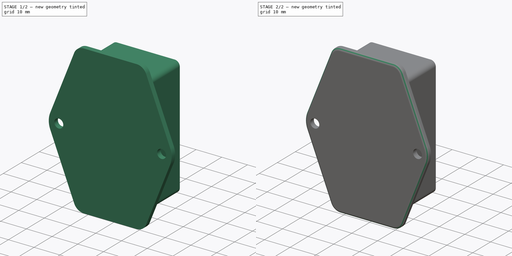
[diagram: build sequence overview — one tinted view per stage of 2, left to right]
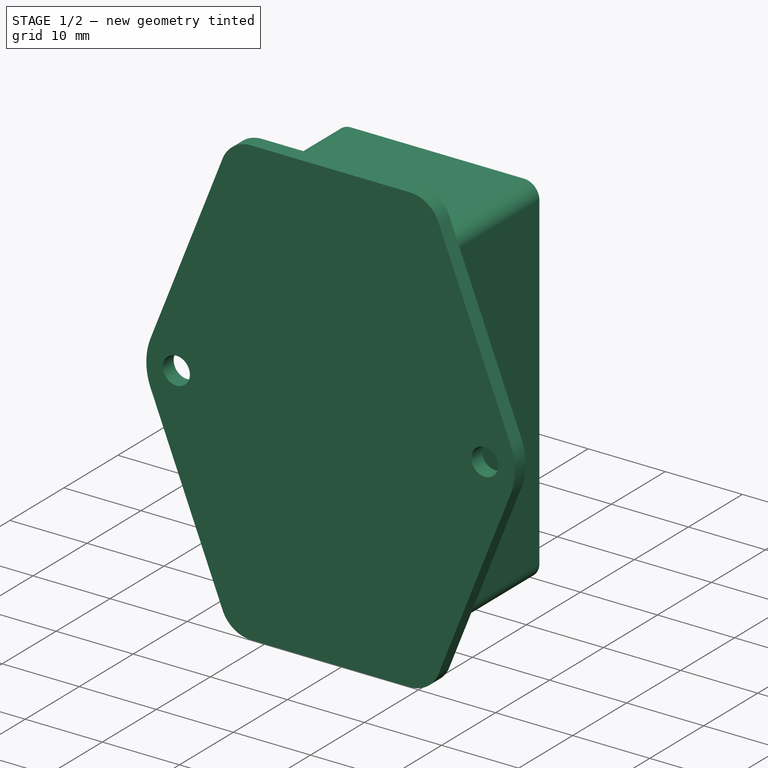
[diagram: stage 1 of 2 — iso view after this stage's code; geometry added in this stage tinted green]
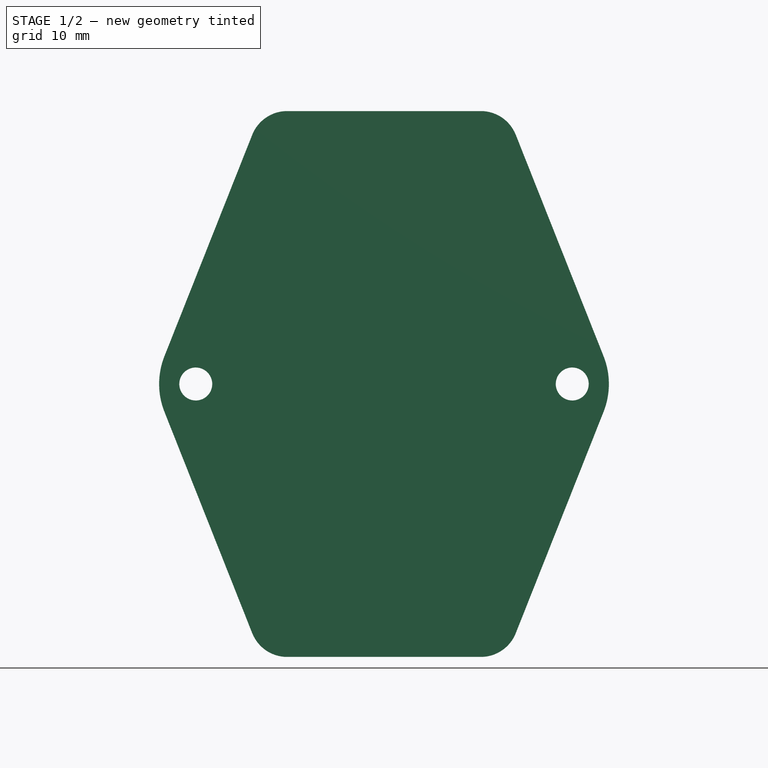
[diagram: stage 1 of 2 — front view after this stage's code; geometry added in this stage tinted green]
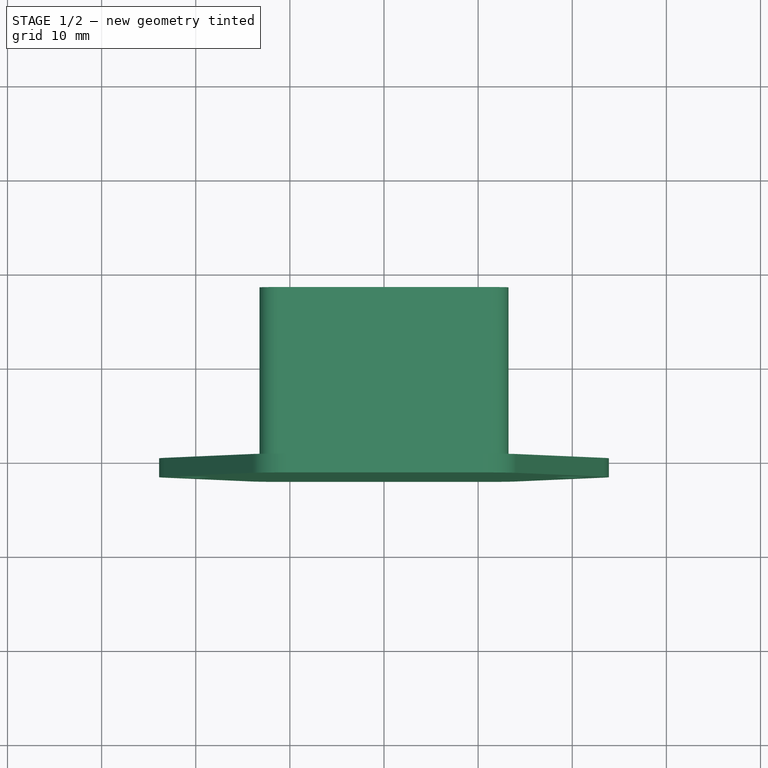
[diagram: stage 1 of 2 — top view after this stage's code; geometry added in this stage tinted green]
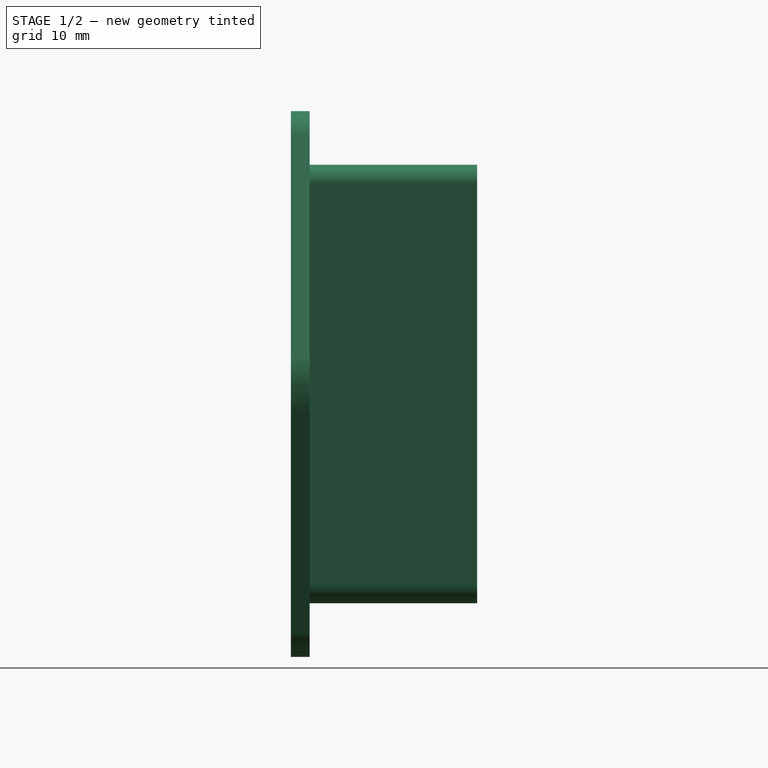
[diagram: stage 1 of 2 — right view after this stage's code; geometry added in this stage tinted green]
FCSTD DOCUMENT  (FreeCAD 1.0R39109 (Git))
Label: power-connector
License: All rights reserved
LicenseURL: http://en.wikipedia.org/wiki/All_rights_reserved
objects: Sketcher::SketchObject×2, PartDesign::Pad×2, PartDesign::Fillet×1, PartDesign::Body×1
note: 14 computed .brp shape members not serialized (recipe doc carries the construction recipe); baked Part::Feature solids carry a one-line shape summary decoded from their .brp

FEATURE [Sketcher::SketchObject] Sketch062
  ArcFitTolerance = 1e-06
  AttachmentSupport = -> [XZ_Plane023]
  FullyConstrained = true
  MakeInternals = false
  MapMode = 5
  Placement = pos=(0,0,0) rot=(1,0,0;1.5708rad)
  sketch-geometry (12):
    g0: LineSegment StartX=-13.225 StartY=21.3 StartZ=0 EndX=-13.225 EndY=-21.3 EndZ=0
    g1: LineSegment StartX=-11.225 StartY=-23.3 StartZ=0 EndX=11.225 EndY=-23.3 EndZ=0
    g2: LineSegment StartX=13.225 StartY=-21.3 StartZ=0 EndX=13.225 EndY=21.3 EndZ=0
    g3: LineSegment StartX=11.225 StartY=23.3 StartZ=0 EndX=-11.225 EndY=23.3 EndZ=0
    g4: ArcOfCircle CenterX=11.225 CenterY=21.3 CenterZ=0 NormalX=0 NormalY=0 NormalZ=1 AngleXU=0 Radius=2 StartAngle=1.41e-14 EndAngle=1.5708
    g5: GeomPoint [constr] X=13.225 Y=23.3 Z=0
    g6: ArcOfCircle CenterX=-11.225 CenterY=21.3 CenterZ=0 NormalX=0 NormalY=0 NormalZ=1 AngleXU=0 Radius=2 StartAngle=1.5708 EndAngle=3.14159
    g7: GeomPoint [constr] X=-13.225 Y=23.3 Z=0
    g8: ArcOfCircle CenterX=-11.225 CenterY=-21.3 CenterZ=0 NormalX=0 NormalY=0 NormalZ=1 AngleXU=0 Radius=2 StartAngle=3.14159 EndAngle=4.71239
    g9: GeomPoint [constr] X=-13.225 Y=-23.3 Z=0
    g10: ArcOfCircle CenterX=11.225 CenterY=-21.3 CenterZ=0 NormalX=0 NormalY=0 NormalZ=1 AngleXU=0 Radius=2 StartAngle=4.71239 EndAngle=6.28319
    g11: GeomPoint [constr] X=13.225 Y=-23.3 Z=0
  constraints (27):
    c: Vertical(g0)
    c: Vertical(g2)
    c: Horizontal(g1)
    c: Horizontal(g3)
    c: Symmetric(g11,g7,g-1)
    c: DistanceX(g7,g5) = 26.45
    c: DistanceY(g11,g5) = 46.6
    c: PointOnObject(g5,g2)
    c: PointOnObject(g5,g3)
    c: Tangent(g2,g4) = -1.5708
    c: Tangent(g3,g4) = -1.5708
    c: PointOnObject(g7,g0)
    c: PointOnObject(g7,g3)
    c: Tangent(g0,g6) = -1.5708
    c: Tangent(g3,g6) = -1.5708
    c: PointOnObject(g9,g0)
    c: PointOnObject(g9,g1)
    c: Tangent(g0,g8) = -1.5708
    c: Tangent(g1,g8) = -1.5708
    c: PointOnObject(g11,g1)
    c: PointOnObject(g11,g2)
    c: Tangent(g1,g10) = -1.5708
    c: Tangent(g2,g10) = -1.5708
    c: Equal(g10,g8)
    c: Equal(g8,g6)
    c: Equal(g6,g4)
    c: Radius(g4) = 2
FEATURE [PartDesign::Pad] Pad027
  Direction = (0,-1,2e-16)
  Length = 17.8
  Length2 = 10
  Placement = pos=(0,0,0) rot=(1,0,0;1.5708rad)
  Profile = -> Sketch062
  ReferenceAxis = -> Sketch062 [N_Axis]
  Reversed = true
  Suppressed = false
  Type = 0
FEATURE [Sketcher::SketchObject] Sketch063
  ArcFitTolerance = 1e-06
  AttachmentSupport = -> [XZ_Plane023]
  FullyConstrained = true
  MakeInternals = false
  MapMode = 5
  Placement = pos=(0,0,0) rot=(1,0,0;1.5708rad)
  sketch-geometry (20):
    g0: LineSegment StartX=-10.2832 StartY=29 StartZ=0 EndX=10.2832 EndY=29 EndZ=0
    g1: LineSegment StartX=14.0015 StartY=26.4745 StartZ=0 EndX=23.3306 EndY=2.94901 EndZ=0
    g2: LineSegment StartX=23.3306 StartY=-2.94901 StartZ=0 EndX=14.0015 EndY=-26.4745 EndZ=0
    g3: LineSegment StartX=10.2832 StartY=-29 StartZ=0 EndX=-10.2832 EndY=-29 EndZ=0
    g4: LineSegment StartX=-14.0015 StartY=-26.4745 StartZ=0 EndX=-23.3306 EndY=-2.94901 EndZ=0
    g5: LineSegment StartX=-23.3306 StartY=2.94901 StartZ=0 EndX=-14.0015 EndY=26.4745 EndZ=0
    g6: ArcOfCircle CenterX=-15.8939 CenterY=-3.7e-15 CenterZ=0 NormalX=0 NormalY=0 NormalZ=1 AngleXU=0 Radius=8 StartAngle=2.76406 EndAngle=3.51912
    g7: GeomPoint [constr] X=-24.5 Y=0 Z=0
    g8: ArcOfCircle CenterX=-10.2832 CenterY=25 CenterZ=0 NormalX=0 NormalY=0 NormalZ=1 AngleXU=0 Radius=4 StartAngle=1.5708 EndAngle=2.76406
    g9: GeomPoint [constr] X=-13 Y=29 Z=0
    g10: ArcOfCircle CenterX=10.2832 CenterY=25 CenterZ=0 NormalX=0 NormalY=0 NormalZ=1 AngleXU=0 Radius=4 StartAngle=0.37753 EndAngle=1.5708
    g11: GeomPoint [constr] X=13 Y=29 Z=0
    g12: ArcOfCircle CenterX=15.8939 CenterY=-2.2e-15 CenterZ=0 NormalX=0 NormalY=0 NormalZ=1 AngleXU=0 Radius=8 StartAngle=5.90566 EndAngle=6.66072
    g13: GeomPoint [constr] X=24.5 Y=0 Z=0
    g14: ArcOfCircle CenterX=10.2832 CenterY=-25 CenterZ=0 NormalX=0 NormalY=0 NormalZ=1 AngleXU=0 Radius=4 StartAngle=4.71239 EndAngle=5.90566
    g15: GeomPoint [constr] X=13 Y=-29 Z=0
    g16: ArcOfCircle CenterX=-10.2832 CenterY=-25 CenterZ=0 NormalX=0 NormalY=0 NormalZ=1 AngleXU=0 Radius=4 StartAngle=3.51912 EndAngle=4.71239
    g17: GeomPoint [constr] X=-13 Y=-29 Z=0
    g18: Circle CenterX=20 CenterY=0 CenterZ=0 NormalX=0 NormalY=0 NormalZ=1 AngleXU=0 Radius=1.75
    g19: Circle CenterX=-20 CenterY=0 CenterZ=0 NormalX=0 NormalY=0 NormalZ=1 AngleXU=0 Radius=1.75
  constraints (44):
    c: PointOnObject(g13,g-1)
    c: Horizontal(g3)
    c: Symmetric(g9,g11,g-2)
    c: Symmetric(g7,g13,g-2)
    c: Vertical(g11,g15)
    c: Symmetric(g17,g9,g-1)
    c: PointOnObject(g7,g4)
    c: PointOnObject(g7,g5)
    c: Tangent(g4,g6) = 1.5708
    c: Tangent(g5,g6) = 1.5708
    c: PointOnObject(g9,g0)
    c: PointOnObject(g9,g5)
    c: Tangent(g0,g8) = 1.5708
    c: Tangent(g5,g8) = 1.5708
    c: PointOnObject(g11,g0)
    c: PointOnObject(g11,g1)
    c: Tangent(g0,g10) = 1.5708
    c: Tangent(g1,g10) = 1.5708
    c: PointOnObject(g13,g1)
    c: PointOnObject(g13,g2)
    c: Tangent(g1,g12) = 1.5708
    c: Tangent(g2,g12) = 1.5708
    c: PointOnObject(g15,g2)
    c: PointOnObject(g15,g3)
    c: Tangent(g2,g14) = 1.5708
    c: Tangent(g3,g14) = 1.5708
    c: PointOnObject(g17,g3)
    c: PointOnObject(g17,g4)
    c: Tangent(g3,g16) = 1.5708
    c: Tangent(g4,g16) = 1.5708
    c: Equal(g16,g14)
    c: Equal(g14,g10)
    c: Equal(g10,g8)
    c: Radius(g8) = 4
    c: Equal(g6,g12)
    c: Radius(g12) = 8
    c: DistanceY(g15,g11) = 58
    c: DistanceX(g9,g11) = 26
    c: PointOnObject(g18,g-1)
    c: Symmetric(g19,g18,g-2)
    c: Equal(g18,g19)
    c: Diameter(g18) = 3.5
    c: DistanceX(g7,g13) = 49
    c: DistanceX(g19,g18) = 40
FEATURE [PartDesign::Pad] Pad112
  BaseFeature = -> Pad027
  Direction = (0,-1,2e-16)
  Length = 2
  Length2 = 10
  Placement = pos=(0,0,0) rot=(1,0,0;1.5708rad)
  Profile = -> Sketch063
  ReferenceAxis = -> Sketch063 [N_Axis]
  Suppressed = false
  Type = 0
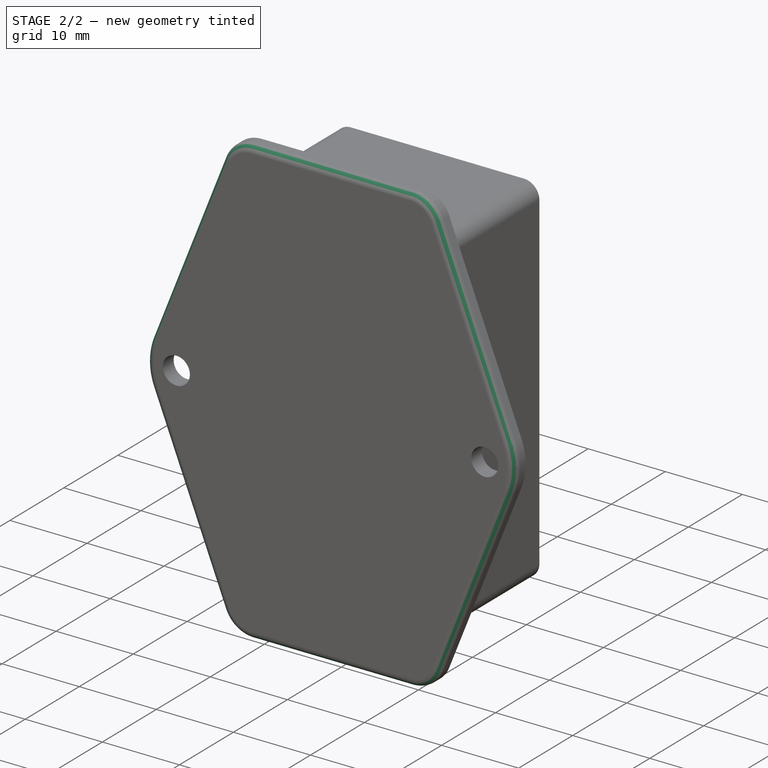
[diagram: stage 2 of 2 — iso view after this stage's code; geometry added in this stage tinted green]
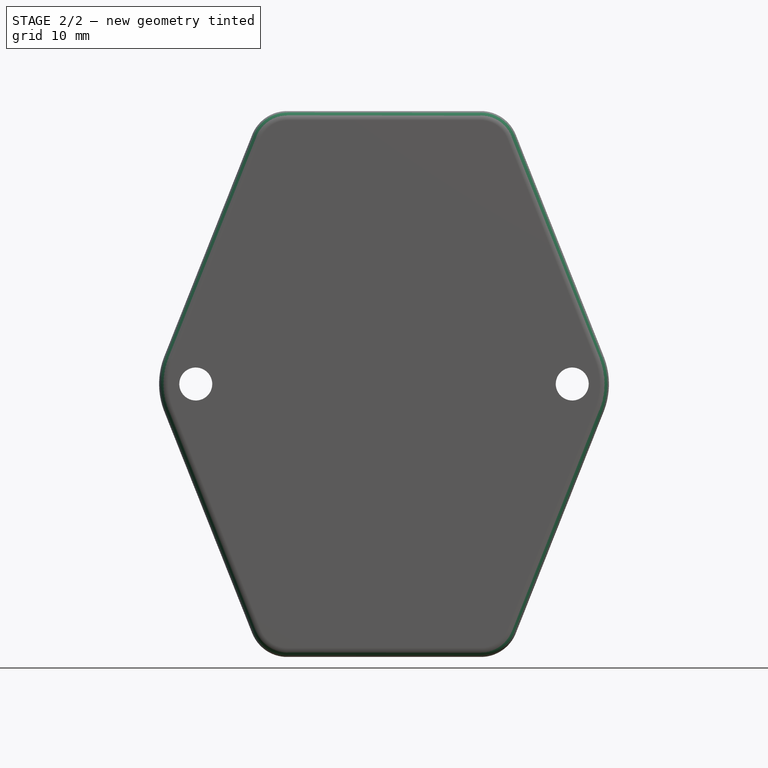
[diagram: stage 2 of 2 — front view after this stage's code; geometry added in this stage tinted green]
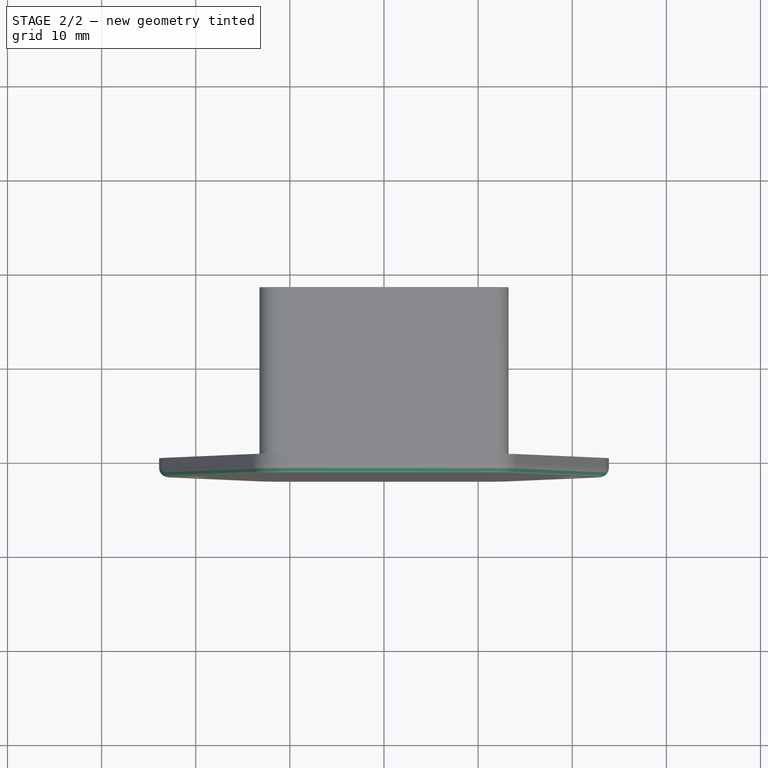
[diagram: stage 2 of 2 — top view after this stage's code; geometry added in this stage tinted green]
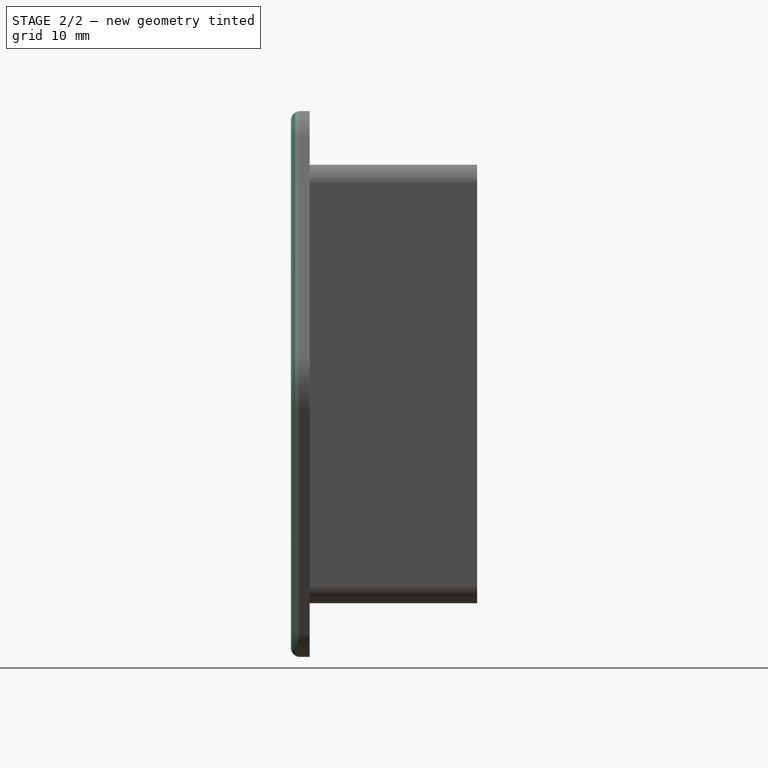
[diagram: stage 2 of 2 — right view after this stage's code; geometry added in this stage tinted green]
FEATURE [PartDesign::Fillet] Fillet010
  Base = -> Pad112 [Edge60]
  BaseFeature = -> Pad112
  Placement = pos=(0,0,0) rot=(1,0,0;1.5708rad)
  Radius = 1
  SupportTransform = false
  Suppressed = false
  UseAllEdges = false
FEATURE [PartDesign::Body] Body019  label="power-connector"
  AllowCompound = false
  Group = -> [Sketch062,Pad027,Sketch063,Pad112,Fillet010]
  Origin = -> Origin023
  Tip = -> Fillet010
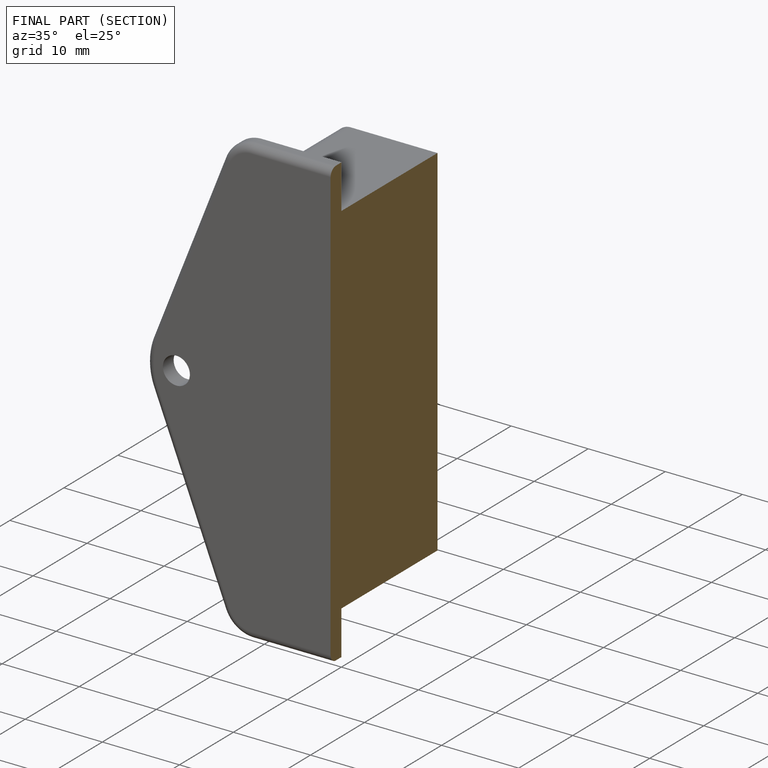
[diagram: finished part — half-section view (interior)]
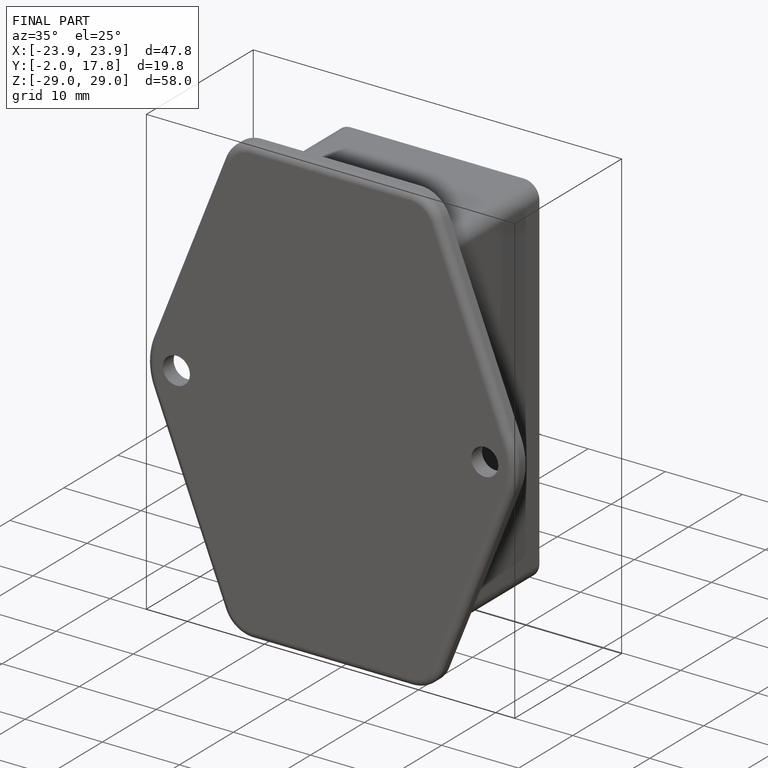
[diagram: finished part — iso view with bounding-box wireframe]
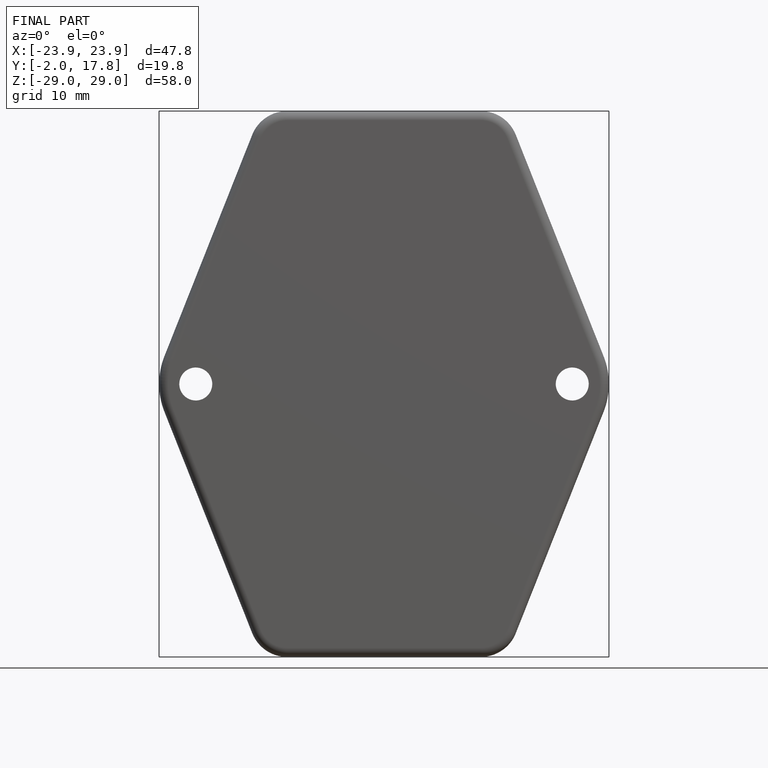
[diagram: finished part — front view with bounding-box wireframe]
